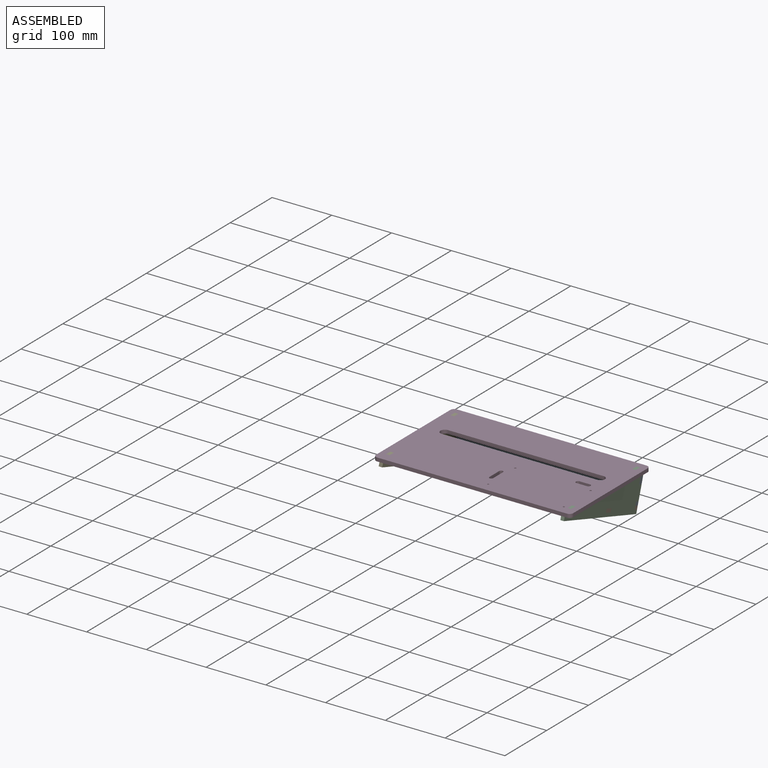
[diagram: assembled view]
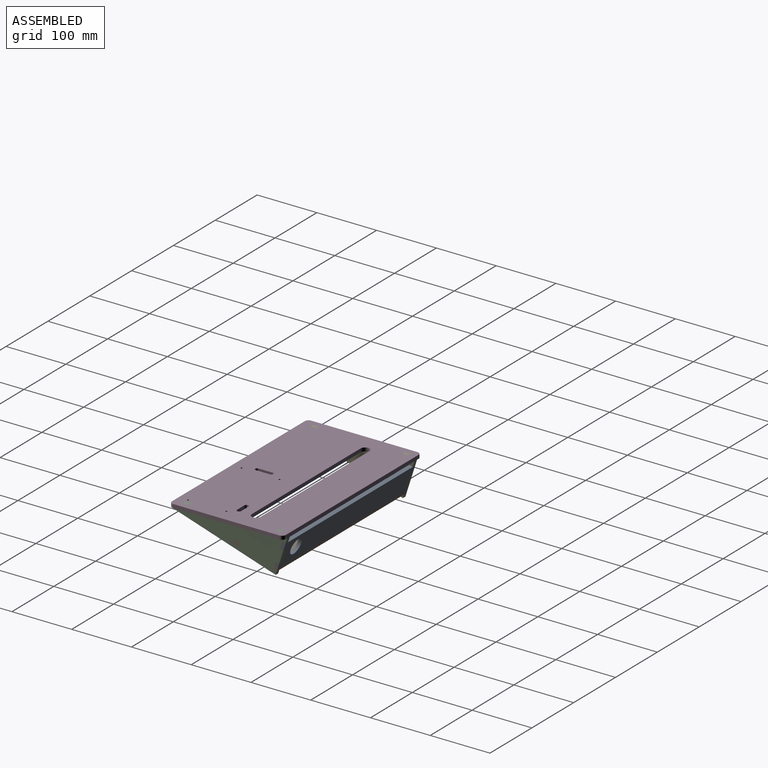
[diagram: assembled view, second angle]
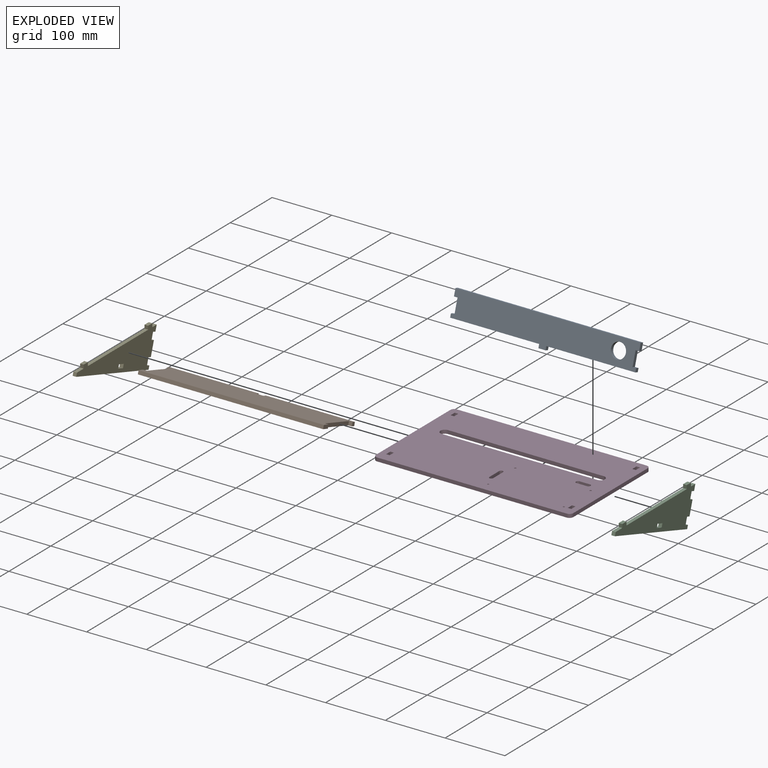
[diagram: exploded view]
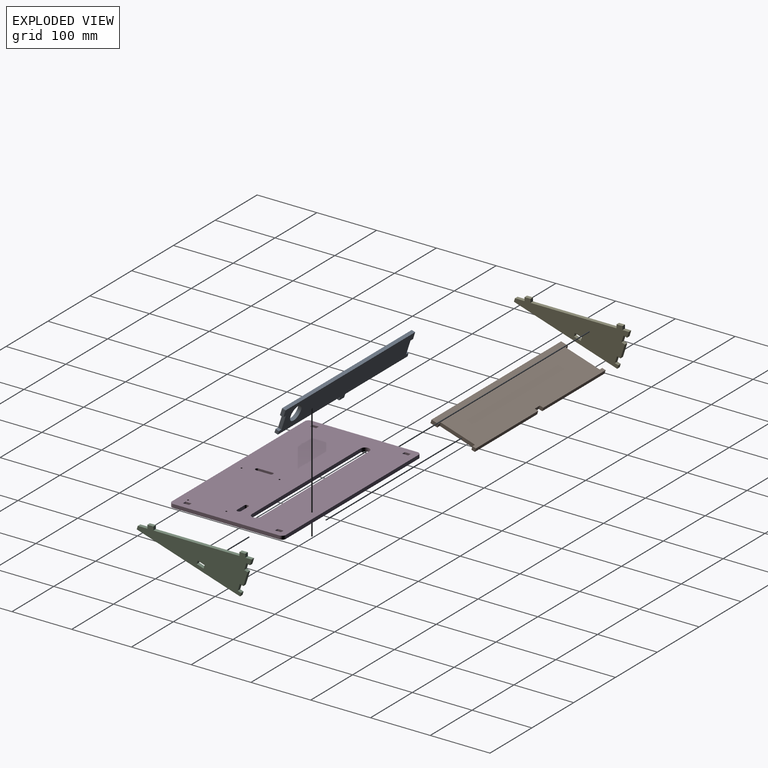
[diagram: exploded view, second angle]
ASSEMBLY  parts=5 mates=4
PART A: 19 faces, bbox 310x20.3x47.5 mm
  f0: plane 13.26x9.37mm, normal (1,0,0), area 72mm2, adj f1,f16,f17,f18
  f1: plane 6x5.72mm, normal (0,-0.3,-0.95), area 36mm2, adj f0,f2,f17,f18
  f2: plane 24.69x13.02mm, normal (1,0,0), area 144mm2, adj f1,f3,f17,f18
  f3: plane 6x5.72mm, normal (0,0.3,0.95), area 36mm2, adj f2,f4,f17,f18
  f4: plane 7.54x7.54mm, normal (1,0,0), area 36mm2, adj f3,f5,f17,f18
  f5: plane 149x5.72mm, normal (0,-0.3,-0.95), area 894mm2, adj f4,f6,f17,f18
  f6: plane 7.54x7.54mm, normal (1,0,0), area 36mm2, adj f5,f7,f17,f18
  f7: plane 12x5.72mm, normal (0,-0.3,-0.95), area 72mm2, adj f6,f8,f17,f18
  f8: plane 7.54x7.54mm, normal (-1,0,0), area 36mm2, adj f7,f9,f17,f18
  f9: plane 149x5.72mm, normal (0,-0.3,-0.95), area 894mm2, adj f8,f10,f17,f18
  f10: plane 7.54x7.54mm, normal (-1,0,0), area 36mm2, adj f9,f11,f17,f18
  f11: plane 6x5.72mm, normal (0,0.3,0.95), area 36mm2, adj f10,f12,f17,f18
  f12: plane 24.69x13.02mm, normal (-1,0,0), area 144mm2, adj f11,f13,f17,f18
  f13: plane 6x5.72mm, normal (0,-0.3,-0.95), area 36mm2, adj f12,f14,f17,f18
  f14: plane 13.26x9.37mm, normal (-1,0,0), area 72mm2, adj f13,f16,f17,f18
  f15: cylinder r=12.5mm len=25.64mm, axis (0,-0.95,0.3), area 471.2mm2, adj f17,f18
  f16: plane 310x5.72mm, normal (0,0.3,0.95), area 1860mm2, adj f0,f14,f17,f18
  f17: plane 310x45.72mm, normal (0,0.95,-0.3), area 12313.1mm2, adj f0,f1,f2,f3,f4,f5,f6,f7
  f18: plane 310x45.72mm, normal (0,-0.95,0.3), area 12313.1mm2, adj f0,f1,f2,f3,f4,f5,f6,f7
PART B: 18 faces, bbox 310x76.1x29.5 mm
  f0: plane 6x5.72mm, normal (0,-0.95,0.3), area 36mm2, adj f1,f15,f16,f17
  f1: plane 58.98x23.98mm, normal (1,0,0), area 360mm2, adj f0,f2,f16,f17
  f2: plane 6x5.72mm, normal (0,0.95,-0.3), area 36mm2, adj f1,f3,f16,f17
  f3: plane 13.26x9.37mm, normal (1,0,0), area 72mm2, adj f2,f4,f16,f17
  f4: plane 310x5.72mm, normal (0,-0.95,0.3), area 1860mm2, adj f3,f5,f16,f17
  f5: plane 13.26x9.37mm, normal (-1,0,0), area 72mm2, adj f4,f6,f16,f17
  f6: plane 6x5.72mm, normal (0,0.95,-0.3), area 36mm2, adj f5,f7,f16,f17
  f7: plane 58.98x23.98mm, normal (-1,0,0), area 360mm2, adj f6,f8,f16,f17
  f8: plane 6x5.72mm, normal (0,-0.95,0.3), area 36mm2, adj f7,f9,f16,f17
  f9: plane 7.54x7.54mm, normal (-1,0,0), area 36mm2, adj f8,f10,f16,f17
  f10: plane 149x5.72mm, normal (0,0.95,-0.3), area 894mm2, adj f9,f11,f16,f17
  f11: plane 7.54x7.54mm, normal (1,0,0), area 36mm2, adj f10,f12,f16,f17
  f12: plane 12x5.72mm, normal (0,0.95,-0.3), area 72mm2, adj f11,f13,f16,f17
  f13: plane 7.54x7.54mm, normal (-1,0,0), area 36mm2, adj f12,f14,f16,f17
  f14: plane 149x5.72mm, normal (0,0.95,-0.3), area 894mm2, adj f13,f15,f16,f17
  f15: plane 7.54x7.54mm, normal (1,0,0), area 36mm2, adj f0,f14,f16,f17
  f16: plane 310x74.3mm, normal (0,-0.3,-0.95), area 23388mm2, adj f0,f1,f2,f3,f4,f5,f6,f7
  f17: plane 310x74.3mm, normal (0,0.3,0.95), area 23388mm2, adj f0,f1,f2,f3,f4,f5,f6,f7
PART C: 26 faces, bbox 6x192.3x67 mm
  f0: plane 6x6mm, normal (0,1,0), area 36mm2, adj f1,f23,f24,f25
  f1: plane 10x6mm, normal (0,0,1), area 60mm2, adj f0,f2,f24,f25
  f2: plane 6x6mm, normal (0,-1,0), area 36mm2, adj f1,f3,f24,f25
  f3: plane 16x6mm, normal (0,0,1), area 96mm2, adj f2,f4,f24,f25
  f4: plane 6x5.72mm, normal (0,-0.95,0.3), area 36mm2, adj f3,f5,f24,f25
  f5: plane 172.84x55.25mm, normal (0,-0.3,-0.95), area 1088.7mm2, adj f4,f6,f24,f25
  f6: plane 6x5.72mm, normal (0,0.95,-0.3), area 36mm2, adj f5,f7,f24,f25
  f7: plane 6x5.72mm, normal (0,0.3,0.95), area 36mm2, adj f6,f8,f24,f25
  f8: plane 11.43x6mm, normal (0,0.95,-0.3), area 72mm2, adj f7,f9,f24,f25
  f9: plane 6x5.72mm, normal (0,-0.3,-0.95), area 36mm2, adj f8,f10,f24,f25
  f10: plane 22.86x7.31mm, normal (0,0.95,-0.3), area 144mm2, adj f9,f11,f24,f25
  f11: plane 6x5.72mm, normal (0,0.3,0.95), area 36mm2, adj f10,f12,f24,f25
  f12: plane 11.43x6mm, normal (0,0.95,-0.3), area 72mm2, adj f11,f13,f24,f25
  f13: plane 6x5.72mm, normal (0,-0.3,-0.95), area 36mm2, adj f12,f14,f24,f25
  f14: plane 9.53x6mm, normal (0,0.95,-0.3), area 60mm2, adj f13,f15,f24,f25
  f15: plane 10.5x6mm, normal (0,0,1), area 63mm2, adj f14,f16,f24,f25
  f16: plane 6x6mm, normal (0,1,0), area 36mm2, adj f15,f17,f24,f25
  f17: plane 10x6mm, normal (0,0,1), area 60mm2, adj f16,f18,f24,f25
  f18: plane 6x6mm, normal (0,-1,0), area 36mm2, adj f17,f23,f24,f25
  f19: plane 11.43x6mm, normal (0,0.3,0.95), area 72mm2, adj f20,f22,f24,f25
  f20: plane 6x5.72mm, normal (0,0.95,-0.3), area 36mm2, adj f19,f21,f24,f25
  f21: plane 11.43x6mm, normal (0,-0.3,-0.95), area 72mm2, adj f20,f22,f24,f25
  f22: plane 6x5.72mm, normal (0,-0.95,0.3), area 36mm2, adj f19,f21,f24,f25
  f23: plane 144x6mm, normal (0,0,1), area 864mm2, adj f0,f18,f24,f25
  f24: plane 192.33x66.96mm, normal (1,0,0), area 6255mm2, adj f0,f1,f2,f3,f4,f5,f6,f7
  f25: plane 192.33x66.96mm, normal (-1,0,0), area 6255mm2, adj f0,f1,f2,f3,f4,f5,f6,f7
PART D: 46 faces, bbox 330.2x190.5x6 mm
  f0: plane 177.8x6mm, normal (1,0,0), area 1066.8mm2, adj f1,f43,f44,f45
  f1: cylinder r=6.35mm len=6.35mm, axis (0,0,-1), area 59.8mm2, adj f0,f2,f44,f45
  f2: plane 317.5x6mm, normal (0,1,0), area 1905mm2, adj f1,f3,f44,f45
  f3: cylinder r=6.35mm len=6.35mm, axis (0,0,-1), area 59.8mm2, adj f2,f4,f44,f45
  f4: plane 177.8x6mm, normal (-1,0,0), area 1066.8mm2, adj f3,f5,f44,f45
  f5: cylinder r=6.35mm len=6.35mm, axis (0,0,-1), area 59.8mm2, adj f4,f6,f44,f45
  f6: plane 317.5x6mm, normal (0,-1,0), area 1905mm2, adj f5,f43,f44,f45
  f7: cylinder r=7.5mm len=15mm, axis (0,0,-1), area 141.4mm2, adj f8,f32,f44,f45
  f8: plane 260x6mm, normal (0,-1,0), area 1560mm2, adj f7,f9,f44,f45
  f9: cylinder r=7.5mm len=15mm, axis (0,0,-1), area 141.4mm2, adj f8,f32,f44,f45
  f10: cylinder r=3.25mm len=6.5mm, axis (0,0,-1), area 61.5mm2, adj f11,f33,f44,f45
  f11: plane 23.5x6mm, normal (1,0,0), area 141mm2, adj f10,f12,f44,f45
  f12: cylinder r=3.25mm len=6.5mm, axis (0,0,-1), area 61mm2, adj f11,f33,f44,f45
  f13: plane 6x6mm, normal (0,1,0), area 36mm2, adj f14,f34,f44,f45
  f14: plane 10x6mm, normal (1,0,0), area 60mm2, adj f13,f15,f44,f45
  f15: plane 6x6mm, normal (0,-1,0), area 36mm2, adj f14,f34,f44,f45
  f16: plane 18x6mm, normal (0,-1,0), area 108mm2, adj f17,f35,f44,f45
  f17: cylinder r=3mm len=6mm, axis (0,0,-1), area 28.3mm2, adj f16,f18,f44,f45
  f18: plane 6x1mm, normal (-1,0,0), area 6mm2, adj f17,f19,f44,f45
  f19: cylinder r=3mm len=6mm, axis (0,0,-1), area 28.3mm2, adj f18,f20,f44,f45
  f20: plane 18x6mm, normal (0,1,0), area 108mm2, adj f19,f21,f44,f45
  f21: cylinder r=3mm len=6mm, axis (0,0,-1), area 28.3mm2, adj f20,f22,f44,f45
  f22: plane 6x1mm, normal (1,0,0), area 6mm2, adj f21,f35,f44,f45
  f23: plane 6x6mm, normal (0,1,0), area 36mm2, adj f24,f40,f44,f45
  f24: plane 10x6mm, normal (1,0,0), area 60mm2, adj f23,f25,f44,f45
  f25: plane 6x6mm, normal (0,-1,0), area 36mm2, adj f24,f40,f44,f45
  f26: plane 6x6mm, normal (0,-1,0), area 36mm2, adj f27,f41,f44,f45
  f27: plane 10x6mm, normal (-1,0,0), area 60mm2, adj f26,f28,f44,f45
  f28: plane 6x6mm, normal (0,1,0), area 36mm2, adj f27,f41,f44,f45
  f29: plane 6x6mm, normal (0,1,0), area 36mm2, adj f30,f42,f44,f45
  f30: plane 10x6mm, normal (1,0,0), area 60mm2, adj f29,f31,f44,f45
  f31: plane 6x6mm, normal (0,-1,0), area 36mm2, adj f30,f42,f44,f45
  f32: plane 260x6mm, normal (0,1,0), area 1560mm2, adj f7,f9,f44,f45
  f33: plane 23.5x6mm, normal (-1,0,0), area 141mm2, adj f10,f12,f44,f45
  f34: plane 10x6mm, normal (-1,0,0), area 60mm2, adj f13,f15,f44,f45
  f35: cylinder r=3mm len=6mm, axis (0,0,-1), area 28.3mm2, adj f16,f22,f44,f45
  f36: cylinder r=1.5mm len=6mm, axis (0,0,-1), area 56.5mm2, adj f44,f45
  f37: cylinder r=1.5mm len=6mm, axis (0,0,-1), area 56.5mm2, adj f44,f45
  f38: cylinder r=1.5mm len=6mm, axis (0,0,-1), area 56.5mm2, adj f44,f45
  f39: cylinder r=1.5mm len=6mm, axis (0,0,-1), area 56.5mm2, adj f44,f45
  f40: plane 10x6mm, normal (-1,0,0), area 60mm2, adj f23,f25,f44,f45
  f41: plane 10x6mm, normal (1,0,0), area 60mm2, adj f26,f28,f44,f45
  f42: plane 10x6mm, normal (-1,0,0), area 60mm2, adj f29,f31,f44,f45
  f43: cylinder r=6.35mm len=6.35mm, axis (0,0,-1), area 59.8mm2, adj f0,f6,f44,f45
  f44: plane 330.2x190.5mm, normal (0,0,1), area 58177.3mm2, adj f0,f1,f2,f3,f4,f5,f6,f7
  f45: plane 330.2x190.5mm, normal (0,0,-1), area 58177.3mm2, adj f0,f1,f2,f3,f4,f5,f6,f7
PART E: same geometry as C
PLACE A t=(-92.98,92.27,-91.65)mm
PLACE B t=(-61.21,41.64,80.94)mm
PLACE C t=(-59.28,72.03,200.16)mm
PLACE D t=(229.49,407.95,50.26)mm
PLACE E t=(-363.28,72.03,200.16)mm
MATE fastened C.f1 <-> D.f44  axis (0,0,1) through (105.2,79.98,56.26)mm
MATE fastened A.f4 <-> C.f24  axis (1,0,0) through (105.2,232.93,2.55)mm
MATE fastened E.f1 <-> D.f44  axis (0,0,1) through (-204.8,79.98,56.26)mm
MATE fastened B.f15 <-> C.f24  axis (1,0,0) through (105.2,231.1,-3.16)mm
